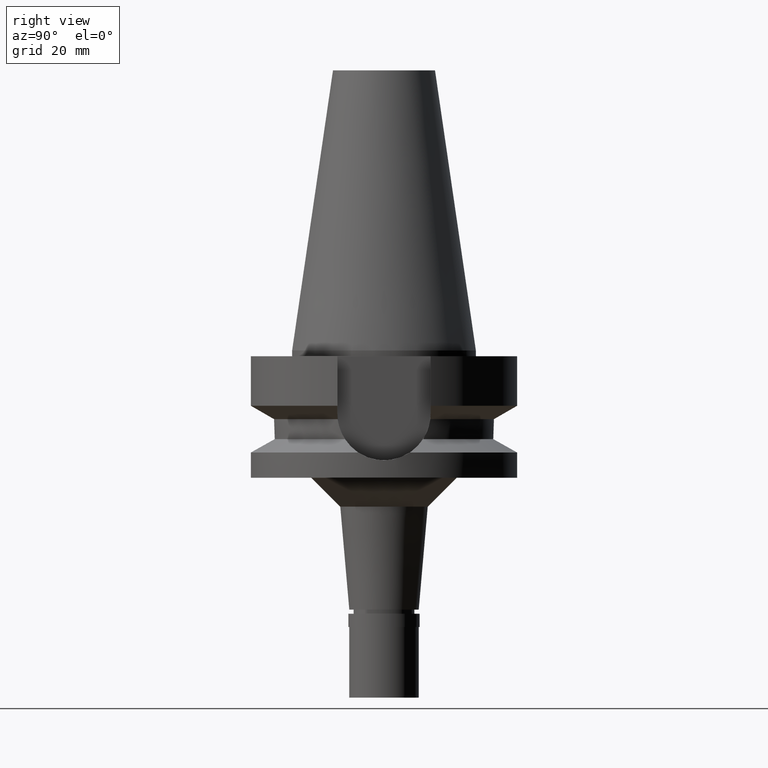
[diagram: clean part render]
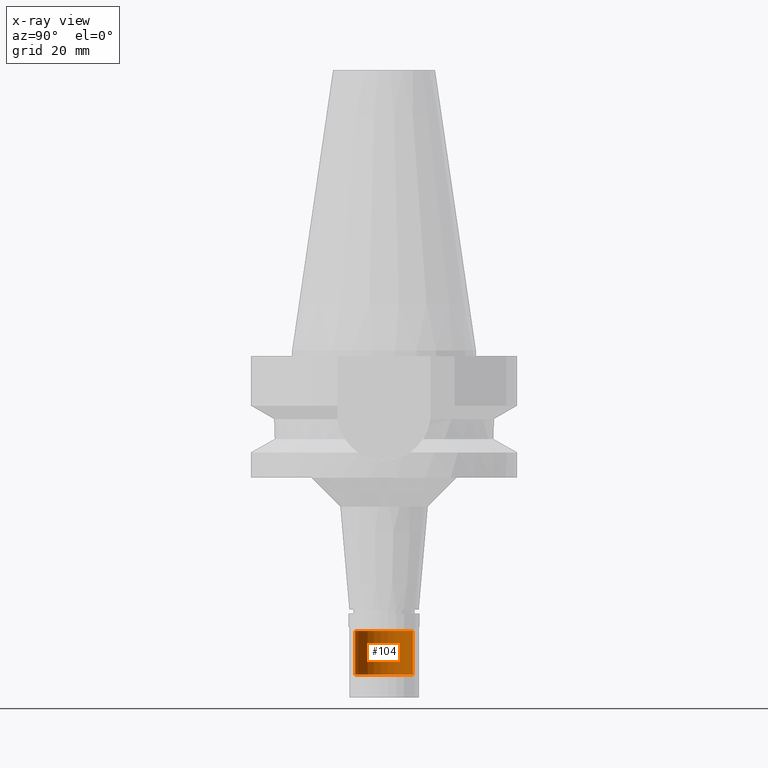
[diagram: x-ray — body ghosted, one internal face saturated and labeled with its STEP entity id]
A machine part, right view, then the same camera in x-ray: the body is ghosted and one INTERNAL B-rep face — a face not visible from any outside direction — is saturated and labeled: STEP entity #104.
In plain terms, the highlighted cylindrical surface (edge-blend (fillet) strip) has radius 5 mm, axis along (0, 0, -1).
Its self-contained STEP definition (entity closure, byte-faithful):
#41 = EDGE_CURVE ( 'NONE', #1605, #2920, #1022, .T. ) ;
#104 = ADVANCED_FACE ( 'NONE', ( #1691 ), #2402, .T. ) ;
#113 = DIRECTION ( 'NONE',  ( 0.0000000000000000000, 0.0000000000000000000, -1.000000000000000000 ) ) ;
#125 = VERTEX_POINT ( 'NONE', #1472 ) ;
#144 = DIRECTION ( 'NONE',  ( 0.0000000000000000000, -1.000000000000000000, 0.0000000000000000000 ) ) ;
#165 = CARTESIAN_POINT ( 'NONE',  ( 0.0000000000000000000, 5.000000000000000000, -48.50000000000000000 ) ) ;
#369 = DIRECTION ( 'NONE',  ( 0.0000000000000000000, 1.000000000000000000, 0.0000000000000000000 ) ) ;
#434 = EDGE_CURVE ( 'NONE', #125, #1605, #516, .T. ) ;
#516 = CIRCLE ( 'NONE', #2824, 5.000000000000000000 ) ;
#535 = DIRECTION ( 'NONE',  ( 0.0000000000000000000, -1.000000000000000000, 0.0000000000000000000 ) ) ;
#609 = DIRECTION ( 'NONE',  ( 0.0000000000000000000, 0.0000000000000000000, 1.000000000000000000 ) ) ;
#728 = VECTOR ( 'NONE', #2151, 1000.000000000000000 ) ;
#756 = DIRECTION ( 'NONE',  ( 0.0000000000000000000, 0.0000000000000000000, -1.000000000000000000 ) ) ;
#1022 = LINE ( 'NONE', #2621, #728 ) ;
#1067 = AXIS2_PLACEMENT_3D ( 'NONE', #2818, #756, #535 ) ;
#1155 = CARTESIAN_POINT ( 'NONE',  ( 0.0000000000000000000, -5.000000000000000000, -56.00000000000000000 ) ) ;
#1296 = CARTESIAN_POINT ( 'NONE',  ( 0.0000000000000000000, 1.881302412850000052E-14, -48.50000000000000000 ) ) ;
#1472 = CARTESIAN_POINT ( 'NONE',  ( 0.0000000000000000000, -5.000000000000000000, -48.50000000000000000 ) ) ;
#1605 = VERTEX_POINT ( 'NONE', #165 ) ;
#1691 = FACE_OUTER_BOUND ( 'NONE', #2944, .T. ) ;
#1730 = ORIENTED_EDGE ( 'NONE', *, *, #2279, .T. ) ;
#1771 = ORIENTED_EDGE ( 'NONE', *, *, #434, .T. ) ;
#1791 = VERTEX_POINT ( 'NONE', #1155 ) ;
#1885 = CARTESIAN_POINT ( 'NONE',  ( 0.0000000000000000000, 5.000000000000000000, -56.00000000000000000 ) ) ;
#1919 = DIRECTION ( 'NONE',  ( 0.0000000000000000000, 0.0000000000000000000, -1.000000000000000000 ) ) ;
#1959 = CARTESIAN_POINT ( 'NONE',  ( 0.0000000000000000000, 1.881302412850000052E-14, -56.00000000000000000 ) ) ;
#2078 = CIRCLE ( 'NONE', #2260, 5.000000000000000000 ) ;
#2151 = DIRECTION ( 'NONE',  ( 0.0000000000000000000, 0.0000000000000000000, -1.000000000000000000 ) ) ;
#2260 = AXIS2_PLACEMENT_3D ( 'NONE', #1959, #609, #369 ) ;
#2279 = EDGE_CURVE ( 'NONE', #2920, #1791, #2078, .T. ) ;
#2310 = VECTOR ( 'NONE', #113, 1000.000000000000000 ) ;
#2402 = CYLINDRICAL_SURFACE ( 'NONE', #1067, 5.000000000000000000 ) ;
#2403 = EDGE_CURVE ( 'NONE', #125, #1791, #2912, .T. ) ;
#2462 = ORIENTED_EDGE ( 'NONE', *, *, #2403, .F. ) ;
#2621 = CARTESIAN_POINT ( 'NONE',  ( 0.0000000000000000000, 5.000000000000000000, -48.50000000000000000 ) ) ;
#2657 = ORIENTED_EDGE ( 'NONE', *, *, #41, .T. ) ;
#2818 = CARTESIAN_POINT ( 'NONE',  ( 0.0000000000000000000, 1.881302412850000052E-14, 53.62000000000000455 ) ) ;
#2824 = AXIS2_PLACEMENT_3D ( 'NONE', #1296, #1919, #144 ) ;
#2886 = CARTESIAN_POINT ( 'NONE',  ( 0.0000000000000000000, -5.000000000000000000, -48.50000000000000000 ) ) ;
#2912 = LINE ( 'NONE', #2886, #2310 ) ;
#2920 = VERTEX_POINT ( 'NONE', #1885 ) ;
#2944 = EDGE_LOOP ( 'NONE', ( #1730, #2462, #1771, #2657 ) ) ;